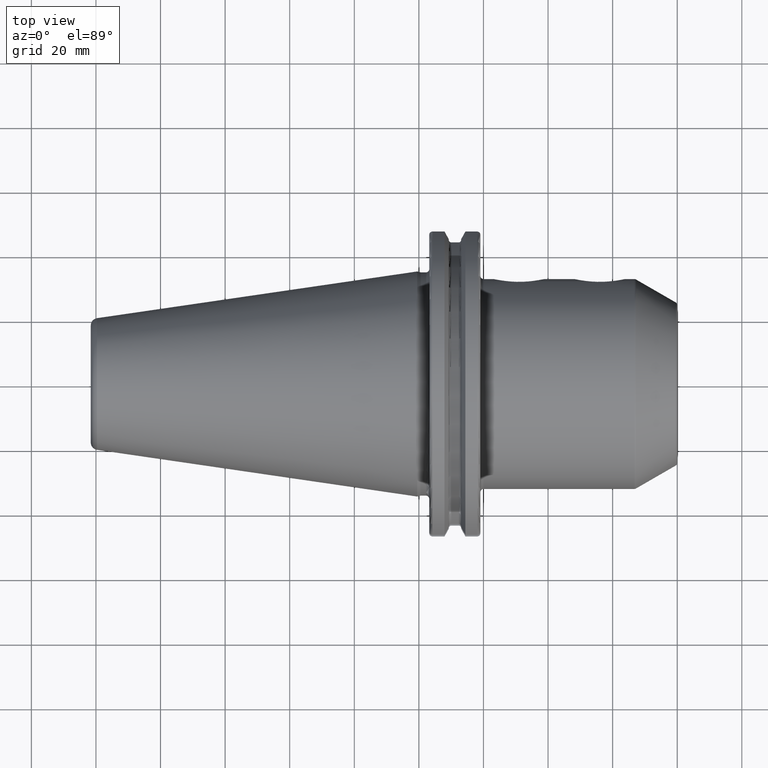
[diagram: clean part render]
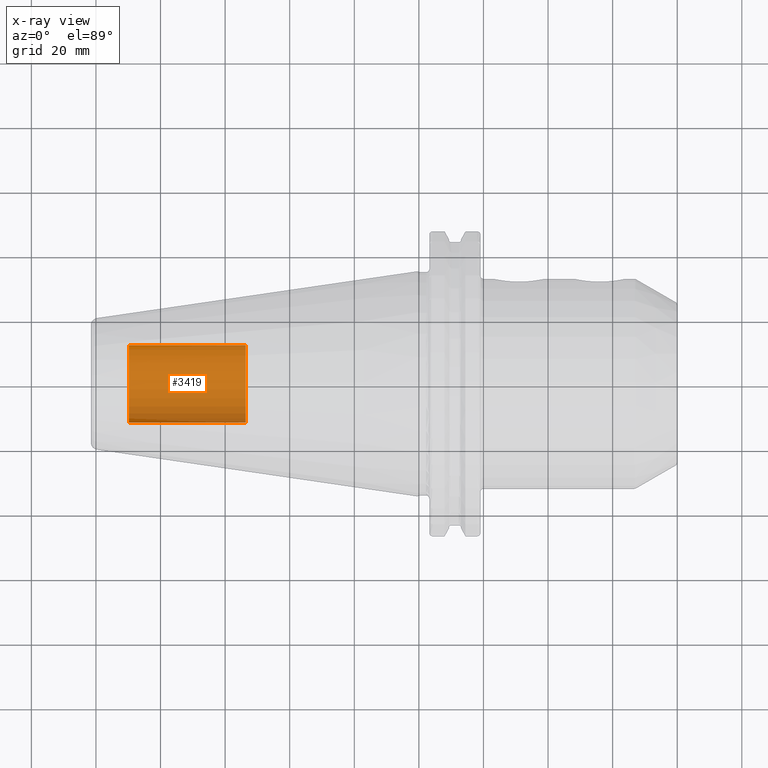
[diagram: x-ray — body ghosted, one internal face saturated and labeled with its STEP entity id]
A machine part, top view, then the same camera in x-ray: the body is ghosted and one INTERNAL B-rep face — a face not visible from any outside direction — is saturated and labeled: STEP entity #3419.
In plain terms, the highlighted cylindrical surface (partial cylindrical patch) has radius 12.0032 mm, axis along (1, 0, 0).
Its self-contained STEP definition (entity closure, byte-faithful):
#3354=CARTESIAN_POINT('',(-8.985E1,0.E0,0.E0));
#3355=DIRECTION('',(-1.E0,0.E0,0.E0));
#3356=DIRECTION('',(0.E0,1.E0,0.E0));
#3357=AXIS2_PLACEMENT_3D('',#3354,#3355,#3356);
#3359=DIRECTION('',(1.E0,0.E0,0.E0));
#3360=VECTOR('',#3359,3.625E1);
#3361=CARTESIAN_POINT('',(-8.985E1,-1.200325E1,0.E0));
#3362=LINE('',#3361,#3360);
#3368=DIRECTION('',(1.E0,0.E0,0.E0));
#3369=VECTOR('',#3368,3.625E1);
#3370=CARTESIAN_POINT('',(-8.985E1,1.200325E1,0.E0));
#3371=LINE('',#3370,#3369);
#3377=CARTESIAN_POINT('',(-5.36E1,0.E0,0.E0));
#3378=DIRECTION('',(1.E0,0.E0,0.E0));
#3379=DIRECTION('',(0.E0,-1.E0,0.E0));
#3380=AXIS2_PLACEMENT_3D('',#3377,#3378,#3379);
#3392=CARTESIAN_POINT('',(-8.985E1,1.200325E1,0.E0));
#3393=CARTESIAN_POINT('',(-8.985E1,-1.200325E1,0.E0));
#3394=VERTEX_POINT('',#3392);
#3395=VERTEX_POINT('',#3393);
#3396=CARTESIAN_POINT('',(-5.36E1,1.200325E1,0.E0));
#3397=CARTESIAN_POINT('',(-5.36E1,-1.200325E1,0.E0));
#3398=VERTEX_POINT('',#3396);
#3399=VERTEX_POINT('',#3397);
#3404=CARTESIAN_POINT('',(-8.985E1,0.E0,0.E0));
#3405=DIRECTION('',(1.E0,0.E0,0.E0));
#3406=DIRECTION('',(0.E0,1.E0,0.E0));
#3407=AXIS2_PLACEMENT_3D('',#3404,#3405,#3406);
#3408=CYLINDRICAL_SURFACE('',#3407,1.200325E1);
#3410=ORIENTED_EDGE('',*,*,#3409,.T.);
#3412=ORIENTED_EDGE('',*,*,#3411,.T.);
#3414=ORIENTED_EDGE('',*,*,#3413,.T.);
#3416=ORIENTED_EDGE('',*,*,#3415,.F.);
#3417=EDGE_LOOP('',(#3410,#3412,#3414,#3416));
#3418=FACE_OUTER_BOUND('',#3417,.F.);
#3419=ADVANCED_FACE('',(#3418),#3408,.T.);
#3358=CIRCLE('',#3357,1.200325E1);
#3381=CIRCLE('',#3380,1.200325E1);
#3409=EDGE_CURVE('',#3394,#3395,#3358,.T.);
#3411=EDGE_CURVE('',#3395,#3399,#3362,.T.);
#3413=EDGE_CURVE('',#3399,#3398,#3381,.T.);
#3415=EDGE_CURVE('',#3394,#3398,#3371,.T.);